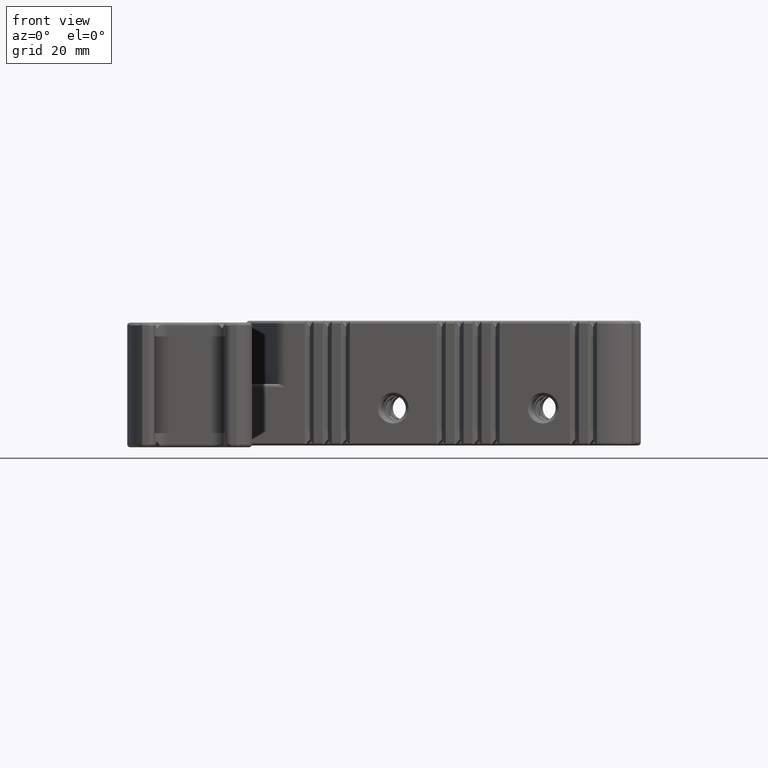
[diagram: clean part render]
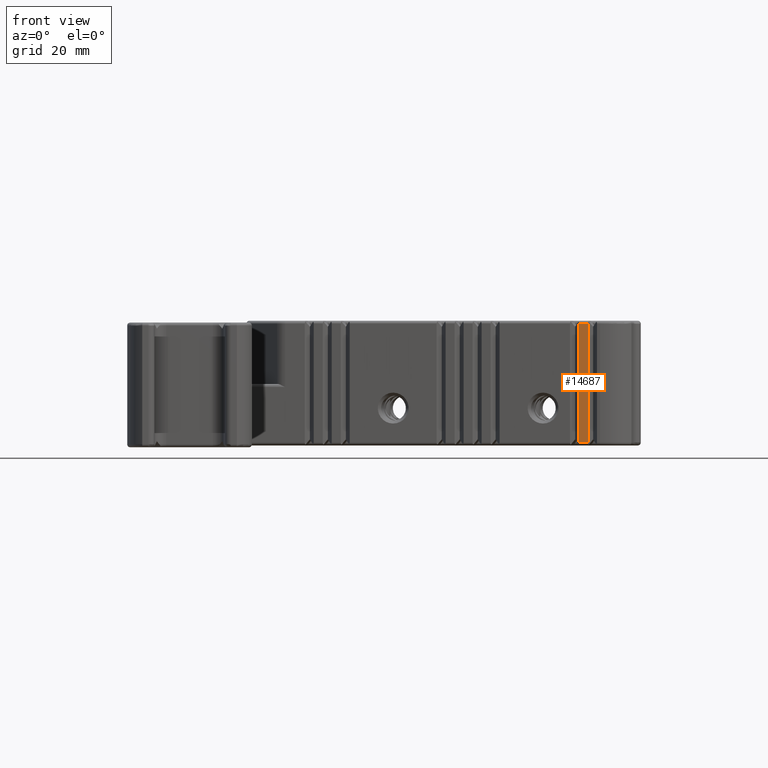
[diagram: same view with one face highlighted and labeled with its STEP entity id]
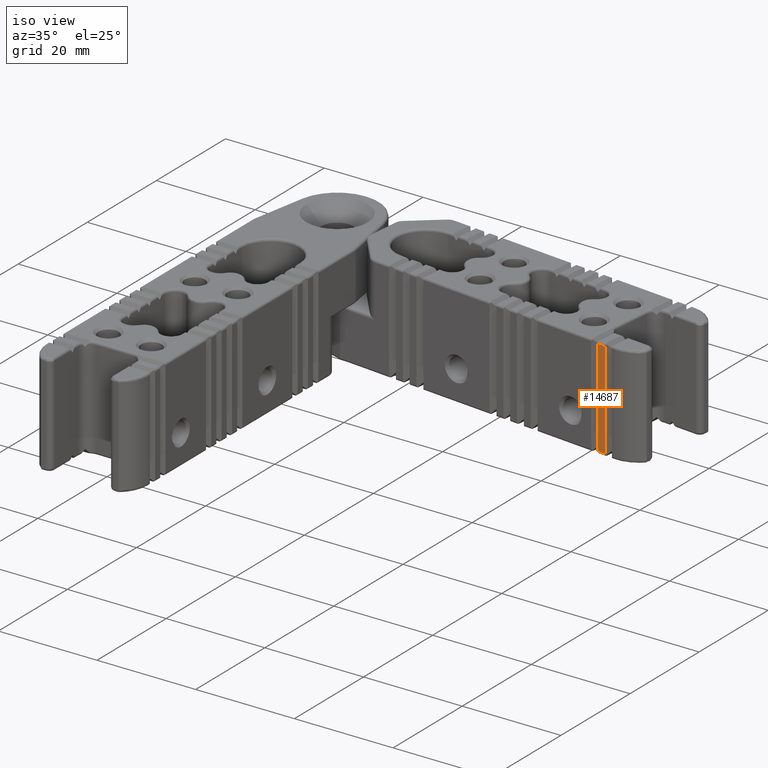
[diagram: same view with one face highlighted and labeled with its STEP entity id]
A machine part, front view. The second image highlights one B-rep face of the part: STEP entity #14687.
A second angle (iso view) of the same face is appended — the face is thin or edge-on in the first view.
In plain terms, the highlighted planar face has unit normal (-0.099, -0.9951, 0).
Its self-contained STEP definition (entity closure, byte-faithful):
#1632=FACE_OUTER_BOUND('',#2479,.T.);
#2479=EDGE_LOOP('',(#12637,#12638,#12639,#12640));
#3659=LINE('',#26410,#4863);
#3661=LINE('',#26417,#4865);
#3663=LINE('',#26424,#4867);
#3672=LINE('',#26451,#4876);
#4863=VECTOR('',#20561,1000.);
#4865=VECTOR('',#20571,1000.);
#4867=VECTOR('',#20577,1000.);
#4876=VECTOR('',#20612,1000.);
#6856=VERTEX_POINT('',#26407);
#6857=VERTEX_POINT('',#26409);
#6858=VERTEX_POINT('',#26415);
#6861=VERTEX_POINT('',#26423);
#8872=EDGE_CURVE('',#6857,#6856,#3659,.T.);
#8876=EDGE_CURVE('',#6858,#6856,#3661,.T.);
#8879=EDGE_CURVE('',#6857,#6861,#3663,.T.);
#8893=EDGE_CURVE('',#6858,#6861,#3672,.T.);
#12637=ORIENTED_EDGE('',*,*,#8876,.F.);
#12638=ORIENTED_EDGE('',*,*,#8893,.T.);
#12639=ORIENTED_EDGE('',*,*,#8879,.F.);
#12640=ORIENTED_EDGE('',*,*,#8872,.T.);
#13959=PLANE('',#16396);
#14687=ADVANCED_FACE('',(#1632),#13959,.T.);
#16396=AXIS2_PLACEMENT_3D('',#26450,#20610,#20611);
#20561=DIRECTION('',(0.,0.,-1.));
#20571=DIRECTION('',(1.,4.70541860720834E-17,0.));
#20577=DIRECTION('',(-1.,-4.70541860720834E-17,0.));
#20610=DIRECTION('center_axis',(-4.70541860720834E-17,1.,0.));
#20611=DIRECTION('ref_axis',(0.,0.,-1.));
#20612=DIRECTION('',(0.,0.,1.));
#26407=CARTESIAN_POINT('',(-86.3300087747087,-2.5225456785213,-2.39253690381256));
#26409=CARTESIAN_POINT('',(-86.3300087747087,-2.5225456785213,17.3074630961874));
#26410=CARTESIAN_POINT('',(-86.3300087747087,-2.5225456785213,2.28246309618744));
#26415=CARTESIAN_POINT('',(-87.8300087747087,-2.5225456785213,-2.39253690381256));
#26417=CARTESIAN_POINT('',(-75.8818460680645,-2.5225456785213,-2.39253690381256));
#26423=CARTESIAN_POINT('',(-87.8300087747087,-2.5225456785213,17.3074630961874));
#26424=CARTESIAN_POINT('',(-75.8818460680645,-2.5225456785213,17.3074630961874));
#26450=CARTESIAN_POINT('Origin',(-94.8300087747087,-2.52254567852129,7.45746309618744));
#26451=CARTESIAN_POINT('',(-87.8300087747087,-2.5225456785213,2.28246309618744));